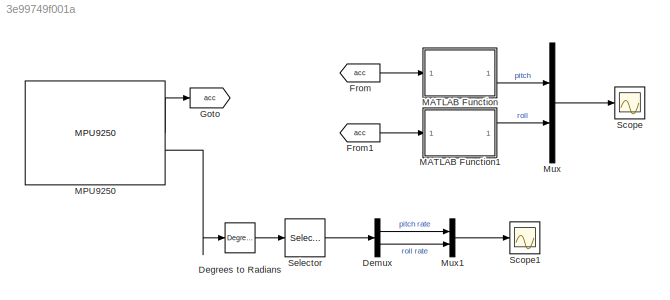
MODEL slx_3e99749f001a
KIND model
CONFIG AbsTol = auto
CONFIG EnableMultiTasking = on
CONFIG FixedStep = auto
CONFIG MaxStep = auto
CONFIG MinStep = auto
CONFIG RelTol = 1e-3
CONFIG SampleTimeConstraint = Unconstrained
CONFIG SolverName = FixedStepAuto
CONFIG StartTime = 0.0
CONFIG StopTime = inf
BLOCK [Reference] Degrees to Radians  REF=simulink_extras/Transformations/Degrees to
Radians
  SourceBlock = simulink_extras/Transformations/Degrees to\nRadians
  SourceType = DegreesToRadians
BLOCK [Demux] Demux
  Outputs = 2
BLOCK [From] From
  GotoTag = acc
  TagVisibility = global
BLOCK [From] From1
  GotoTag = acc
  TagVisibility = global
BLOCK [Goto] Goto
  GotoTag = acc
  TagVisibility = global
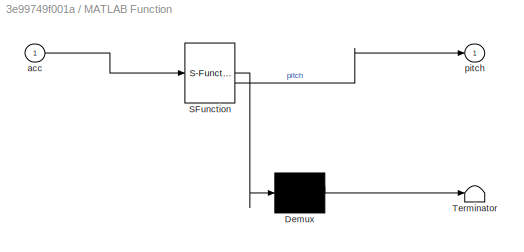
BLOCK [SubSystem] MATLAB Function
  ErrorFcn = Stateflow.Translate.translate
  PermitHierarchicalResolution = ExplicitOnly
  SFBlockType = MATLAB Function
  TreatAsAtomicUnit = on
BLOCK [Demux] MATLAB Function/ Demux 
  Outputs = 1
BLOCK [S-Function] MATLAB Function/ SFunction 
  EnableBusSupport = on
  FunctionName = sf_sfun
  PortCounts = [1 2]
  SFcnIsStateOwnerBlock = off
  SFunctionDeploymentMode = off
  Tag = Stateflow S-Function 2
BLOCK [Terminator] MATLAB Function/ Terminator 
BLOCK [Inport] MATLAB Function/acc
BLOCK [Outport] MATLAB Function/pitch
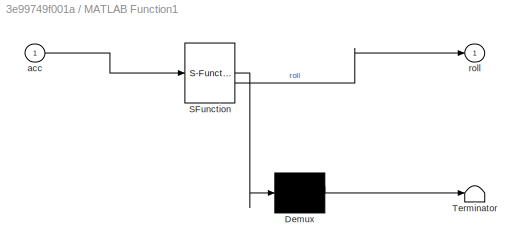
BLOCK [SubSystem] MATLAB Function1
  ErrorFcn = Stateflow.Translate.translate
  PermitHierarchicalResolution = ExplicitOnly
  SFBlockType = MATLAB Function
  TreatAsAtomicUnit = on
BLOCK [Demux] MATLAB Function1/ Demux 
  Outputs = 1
BLOCK [S-Function] MATLAB Function1/ SFunction 
  EnableBusSupport = on
  FunctionName = sf_sfun
  PortCounts = [1 2]
  SFcnIsStateOwnerBlock = off
  SFunctionDeploymentMode = off
  Tag = Stateflow S-Function 1
BLOCK [Terminator] MATLAB Function1/ Terminator 
BLOCK [Inport] MATLAB Function1/acc
BLOCK [Outport] MATLAB Function1/roll
BLOCK [Reference] MPU9250  REF=bbblueSensorLib/MPU9250
  SourceBlock = bbblueSensorLib/MPU9250
  SourceType = beagleboneblue.bbblueMPU9250
BLOCK [Mux] Mux
  DisplayOption = bar
  Inputs = 2
BLOCK [Mux] Mux1
  DisplayOption = bar
  Inputs = 2
BLOCK [Scope] Scope
  Floating = off
  NumInputPorts = 1
  ScopeSpecificationString = Simulink.scopes.TimeScopeBlockCfg('CurrentConfiguration', extmgr.ConfigurationSet(extmgr.Configuration('Core','General UI',true),extmgr.Configuration('Core','Source UI',true),extmgr.Configuration('Sources','WiredSimulink',true),extmgr.Configuration('Visuals','Time Domain',true,'SerializedDisplays',{struct('MinYLimReal','-0.55034','MaxYLimReal','0.39569','YLabelReal','','MinYLimMag','0.00000','MaxY...<+1576ch>
BLOCK [Scope] Scope1
  Floating = off
  NumInputPorts = 1
  ScopeSpecificationString = Simulink.scopes.TimeScopeBlockCfg('CurrentConfiguration', extmgr.ConfigurationSet(extmgr.Configuration('Core','General UI',true),extmgr.Configuration('Core','Source UI',true),extmgr.Configuration('Sources','WiredSimulink',true,'DataLoggingVariableName','ScopeData1'),extmgr.Configuration('Visuals','Time Domain',true,'SerializedDisplays',{struct('MinYLimReal','-0.00652','MaxYLimReal','0.00058','YLab...<+1573ch>
BLOCK [Selector] Selector
  IndexOptions = Index vector (dialog)
  Indices = [1 2]
  InputPortWidth = 3
  OutputSizes = 1
LINE Degrees to Radians:1 -> Selector:1
LINE Demux:1 -> Mux1:1
LINE Demux:2 -> Mux1:2
LINE From1:1 -> MATLAB Function1:1
LINE From:1 -> MATLAB Function:1
LINE MATLAB Function1:1 -> Mux:2
LINE MATLAB Function:1 -> Mux:1
LINE MPU9250:1 -> Goto:1
LINE MPU9250:2 -> Degrees to Radians:1
LINE Mux1:1 -> Scope1:1
LINE Mux:1 -> Scope:1
LINE Selector:1 -> Demux:1
CHART MATLAB Function states=1 transitions=1
  STATE_LABEL 'eML_blk_kernel()'
  STATE_LABEL 'SCRIPT:\nfunction pitch = fcn(acc)\n\nacc_x = acc(1); % declaring accel x\nacc_z = acc(3); % declaring acceleromoter z\n\npitch = atan(acc_x/acc_z);\n\nend\n'
CHART MATLAB Function1 states=1 transitions=1
  STATE_LABEL 'eML_blk_kernel()'
  STATE_LABEL 'SCRIPT:\nfunction roll = fcn(acc)\n\nacc_y = acc(2); % declaring accel x\nacc_z = acc(3); % declaring acceleromoter z\n\nroll = atan(acc_y/acc_z);\n\nend\n'
CHART  states=0 transitions=0
CHART  states=0 transitions=0
